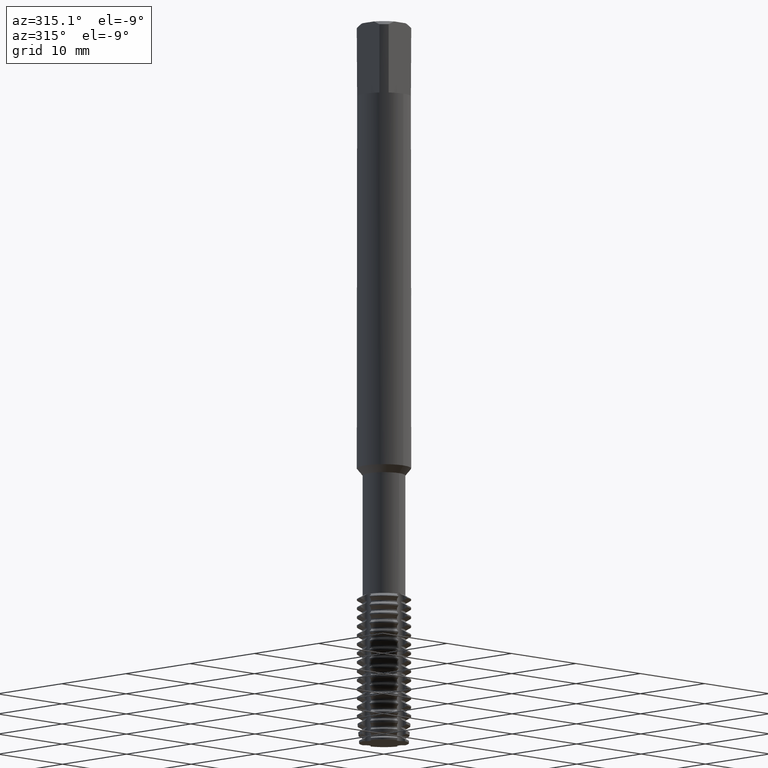
[diagram: clean part render]
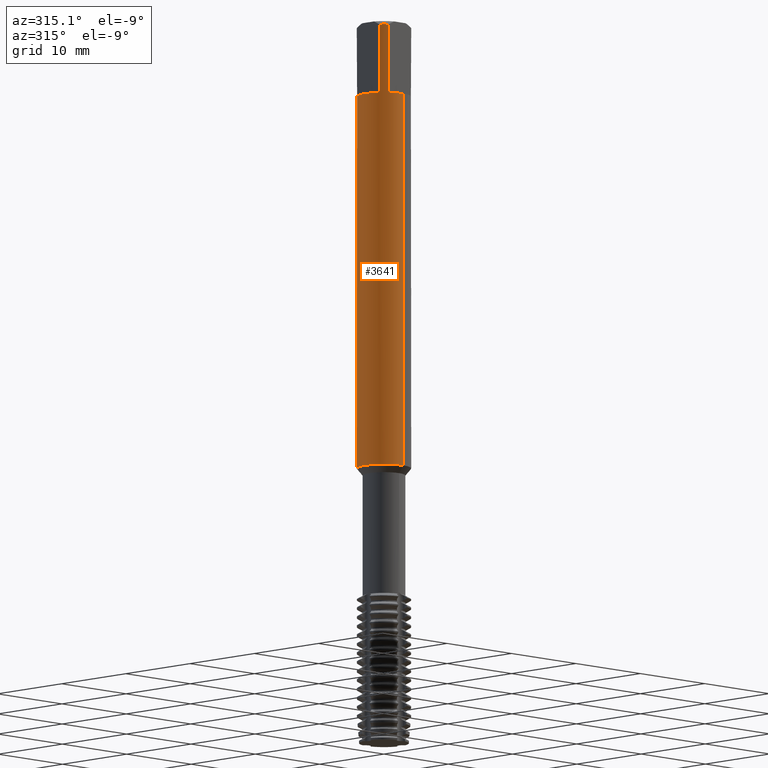
[diagram: same view with one face highlighted and labeled with its STEP entity id]
A machine part, auxiliary view. The second image highlights one B-rep face of the part: STEP entity #3641.
In plain terms, the highlighted cylindrical surface (edge-blend (fillet) strip) has radius 3 mm, axis along (-0, -0, 1).
Its self-contained STEP definition (entity closure, byte-faithful):
#3371=VERTEX_POINT('',#8831);
#3375=VERTEX_POINT('',#8836);
#3441=EDGE_CURVE('',#7007,#3651,#8906,.T.);
#3457=VERTEX_POINT('',#8924);
#3463=EDGE_CURVE('',#3809,#6143,#8931,.T.);
#3641=ADVANCED_FACE('',(#9120),#9121,.T.);
#3651=VERTEX_POINT('',#9132);
#3693=EDGE_CURVE('',#7841,#3809,#9177,.T.);
#3809=VERTEX_POINT('',#9301);
#3993=VERTEX_POINT('',#9498);
#4119=EDGE_CURVE('',#6115,#3375,#9635,.T.);
#4199=EDGE_CURVE('',#6833,#5377,#9725,.T.);
#4393=VERTEX_POINT('',#9937);
#4537=VERTEX_POINT('',#10097);
#4741=EDGE_CURVE('',#7007,#5689,#10323,.T.);
#4965=EDGE_CURVE('',#3371,#7651,#10569,.T.);
#5179=EDGE_CURVE('',#6143,#6803,#10807,.T.);
#5373=VERTEX_POINT('',#11014);
#5377=VERTEX_POINT('',#11019);
#5625=EDGE_CURVE('',#7651,#5373,#11276,.T.);
#5689=VERTEX_POINT('',#11346);
#5763=EDGE_CURVE('',#5373,#7841,#11424,.T.);
#6115=VERTEX_POINT('',#11806);
#6143=VERTEX_POINT('',#11837);
#6171=EDGE_CURVE('',#3651,#4393,#11865,.T.);
#6519=EDGE_CURVE('',#3993,#5689,#12247,.T.);
#6521=EDGE_CURVE('',#4537,#6115,#12249,.T.);
#6777=EDGE_CURVE('',#3457,#4537,#12527,.T.);
#6803=VERTEX_POINT('',#12554);
#6833=VERTEX_POINT('',#12586);
#6971=EDGE_CURVE('',#5377,#7309,#12736,.T.);
#7007=VERTEX_POINT('',#12774);
#7151=EDGE_CURVE('',#4393,#3457,#12936,.T.);
#7169=EDGE_CURVE('',#7309,#3993,#12955,.T.);
#7309=VERTEX_POINT('',#13101);
#7533=VERTEX_POINT('',#13349);
#7649=EDGE_CURVE('',#6803,#7533,#13478,.T.);
#7651=VERTEX_POINT('',#13480);
#7685=EDGE_CURVE('',#3375,#3371,#13516,.T.);
#7841=VERTEX_POINT('',#13680);
#7963=EDGE_CURVE('',#7533,#6833,#13809,.T.);
#8831=CARTESIAN_POINT('',(-2.45,1.73132896931808,-0.399999999999999));
#8836=CARTESIAN_POINT('',(-2.45,1.73132896931808,-8.0));
#8906=LINE('',#15521,#15522);
#8924=CARTESIAN_POINT('',(-1.73132896931808,-2.45,-0.399999999999999));
#8931=B_SPLINE_CURVE_WITH_KNOTS('',3,(#15581,#15582,#15583,#15584,#15585,#15586,#15587,#15588,#15589,#15590,#15591,#15592,#15593,#15594,#15595,#15596,#15597,#15598,#15599,#15600,#15601,#15602,#15603,#15604,#15605,#15606,#15607),.UNSPECIFIED.,.F.,.F.,(4,2,3,2,2,2,2,2,2,2,2,2,4),(-0.325491662881047,-0.162745831440524,0.0,0.162745831440523,0.325491662881047,0.48857928896217,0.651666915043293,0.814181075788761,0.97669523653423,1.13937860219068,1.30206196784712,1.46474533350356,1.62742869916001),.UNSPECIFIED.);
#9120=FACE_OUTER_BOUND('',#15964,.T.);
#9121=CYLINDRICAL_SURFACE('',#15965,3.0);
#9132=CARTESIAN_POINT('',(3.67381906146713E-016,-3.0,-8.0));
#9177=LINE('',#16072,#16073);
#9301=CARTESIAN_POINT('',(-1.12849631556043E-014,3.0,-43.8389612870646));
#9498=CARTESIAN_POINT('',(1.40597456414282E-015,2.99999999999999,-45.043615216062));
#9635=CIRCLE('',#16855,3.0);
#9725=LINE('',#17009,#17010);
#9937=CARTESIAN_POINT('',(-1.73132896931808,-2.45,-8.0));
#10097=CARTESIAN_POINT('',(-2.45,-1.73132896931808,-0.399999999999999));
#10323=CIRCLE('',#18064,3.0);
#10569=CIRCLE('',#18505,3.0);
#10807=B_SPLINE_CURVE_WITH_KNOTS('',3,(#19015,#19016,#19017,#19018,#19019,#19020,#19021,#19022,#19023,#19024,#19025,#19026,#19027,#19028,#19029,#19030,#19031,#19032,#19033,#19034,#19035,#19036,#19037,#19038,#19039,#19040,#19041),.UNSPECIFIED.,.F.,.F.,(4,2,3,2,2,2,2,2,2,2,2,2,4),(-0.325491662881047,-0.162745831440524,0.0,0.162745831440523,0.325491662881047,0.48857928896217,0.651666915043293,0.814181075788761,0.97669523653423,1.13937860219068,1.30206196784712,1.46474533350356,1.62742869916001),.UNSPECIFIED.);
#11014=CARTESIAN_POINT('',(-1.73132896931808,2.45,-8.0));
#11019=CARTESIAN_POINT('',(2.45073976044977E-015,3.0,-44.2527346801947));
#11276=LINE('',#20058,#20059);
#11346=CARTESIAN_POINT('',(0.0,3.0,-49.4));
#11424=CIRCLE('',#20310,3.0);
#11806=CARTESIAN_POINT('',(-2.45,-1.73132896931808,-8.0));
#11837=CARTESIAN_POINT('',(-0.291827366629825,2.98577239388502,-43.6109702489804));
#11865=CIRCLE('',#21109,3.0);
#12247=LINE('',#21833,#21834);
#12249=LINE('',#21837,#21838);
#12527=CIRCLE('',#22340,3.0);
#12554=CARTESIAN_POINT('',(-0.337400394136807,2.98096644966634,-43.4152733192182));
#12586=CARTESIAN_POINT('',(3.38846304659749E-016,3.0,-44.1250480931129));
#12736=ELLIPSE('',#22696,3.34478529612858,3.0);
#12774=CARTESIAN_POINT('',(3.67381906146713E-016,-3.0,-49.4));
#12936=LINE('',#23072,#23073);
#12955=B_SPLINE_CURVE_WITH_KNOTS('',3,(#23131,#23132,#23133,#23134,#23135,#23136,#23137,#23138,#23139,#23140),.UNSPECIFIED.,.F.,.F.,(4,2,2,2,4),(3.33952438176389,3.71068639626914,4.08193290438485,4.45317941250055,4.82387408804259),.UNSPECIFIED.);
#13101=CARTESIAN_POINT('',(-0.802231651465797,2.89074806536067,-44.6482482345277));
#13349=CARTESIAN_POINT('',(-0.621044042345276,2.93501350890715,-43.4152733192182));
#13478=CIRCLE('',#24155,3.0);
#13480=CARTESIAN_POINT('',(-1.73132896931808,2.45,-0.399999999999999));
#13516=LINE('',#24232,#24233);
#13680=CARTESIAN_POINT('',(-3.67381906146713E-016,3.0,-8.0));
#13809=B_SPLINE_CURVE_WITH_KNOTS('',3,(#24823,#24824,#24825,#24826,#24827,#24828,#24829,#24830,#24831,#24832,#24833,#24834,#24835,#24836),.UNSPECIFIED.,.F.,.F.,(4,2,2,2,2,2,4),(1.87999836018882,2.14840403024698,2.41680970030514,2.6852153703633,2.95307215785743,3.22092894535156,3.49027513061082),.UNSPECIFIED.);
#15521=CARTESIAN_POINT('',(3.67381906146713E-016,-3.0,-24.9));
#15522=VECTOR('',#25998,1.0);
#15581=CARTESIAN_POINT('',(0.399073662054701,2.9733382270193,-43.1131578074487));
#15582=CARTESIAN_POINT('',(0.437241118172757,2.96821549111729,-43.1513666363942));
#15583=CARTESIAN_POINT('',(0.470378499662079,2.96297848846858,-43.1997661621587));
#15584=CARTESIAN_POINT('',(0.514381160077738,2.95565719997762,-43.3059468503984));
#15585=CARTESIAN_POINT('',(0.525240588713139,2.95366252709552,-43.3637365970719));
#15586=CARTESIAN_POINT('',(0.525240588713139,2.95366252709552,-43.4179852075521));
#15587=CARTESIAN_POINT('',(0.525240588713139,2.95366252709552,-43.4722338180323));
#15588=CARTESIAN_POINT('',(0.514381160077738,2.95565719997762,-43.5300235647058));
#15589=CARTESIAN_POINT('',(0.470378499662079,2.96297848846858,-43.6362042529454));
#15590=CARTESIAN_POINT('',(0.437241118172758,2.96821549111729,-43.68460377871));
#15591=CARTESIAN_POINT('',(0.360826047619651,2.97847172156046,-43.7611016818081));
#15592=CARTESIAN_POINT('',(0.312384718269332,2.98416839722865,-43.7943131706837));
#15593=CARTESIAN_POINT('',(0.206102293488516,2.99338722515065,-43.8384202069633));
#15594=CARTESIAN_POINT('',(0.148251731896476,2.99682777449178,-43.8493099616648));
#15595=CARTESIAN_POINT('',(0.0397709987252813,3.00022545933147,-43.8493099616648));
#15596=CARTESIAN_POINT('',(-0.0179912012444204,3.00041652694693,-43.8384886213906));
#15597=CARTESIAN_POINT('',(-0.124225517538501,2.99789776999505,-43.7944963705132));
#15598=CARTESIAN_POINT('',(-0.172700489972417,2.99527068292401,-43.7613276588387));
#15599=CARTESIAN_POINT('',(-0.249281669772502,2.9898718432363,-43.6847995158294));
#15600=CARTESIAN_POINT('',(-0.282493736677505,2.98675204362553,-43.6363123678398));
#15601=CARTESIAN_POINT('',(-0.326558647658044,2.98225584656319,-43.5300214521099));
#15602=CARTESIAN_POINT('',(-0.337408919512348,2.9809654847102,-43.4722129961042));
#15603=CARTESIAN_POINT('',(-0.337408919512347,2.9809654847102,-43.3637574189999));
#15604=CARTESIAN_POINT('',(-0.326558647658045,2.98225584656319,-43.3059489629942));
#15605=CARTESIAN_POINT('',(-0.282493736677516,2.98675204362553,-43.1996580472644));
#15606=CARTESIAN_POINT('',(-0.2492816697725,2.9898718432363,-43.1511708992748));
#15607=CARTESIAN_POINT('',(-0.210971156732432,2.9925726676268,-43.112886918428));
#15964=EDGE_LOOP('',(#26165,#26166,#26167,#26168,#26169,#26170,#26171,#26172,#26173,#26174,#26175,#26176,#26177,#26178,#26179,#26180,#26181,#26182,#26183,#26184));
#15965=AXIS2_PLACEMENT_3D('',#26185,#26186,#26187);
#16072=CARTESIAN_POINT('',(-3.67381906146713E-016,3.0,-24.9));
#16073=VECTOR('',#26237,1.0);
#16855=AXIS2_PLACEMENT_3D('',#26666,#26667,#26668);
#17009=CARTESIAN_POINT('',(-3.67381906146713E-016,3.0,-24.9));
#17010=VECTOR('',#26783,1.0);
#18064=AXIS2_PLACEMENT_3D('',#27443,#27444,#27445);
#18505=AXIS2_PLACEMENT_3D('',#27823,#27824,#27825);
#19015=CARTESIAN_POINT('',(0.399073662054701,2.9733382270193,-43.1131578074487));
#19016=CARTESIAN_POINT('',(0.437241118172757,2.96821549111729,-43.1513666363942));
#19017=CARTESIAN_POINT('',(0.470378499662079,2.96297848846858,-43.1997661621587));
#19018=CARTESIAN_POINT('',(0.514381160077738,2.95565719997762,-43.3059468503984));
#19019=CARTESIAN_POINT('',(0.525240588713139,2.95366252709552,-43.3637365970719));
#19020=CARTESIAN_POINT('',(0.525240588713139,2.95366252709552,-43.4179852075521));
#19021=CARTESIAN_POINT('',(0.525240588713139,2.95366252709552,-43.4722338180323));
#19022=CARTESIAN_POINT('',(0.514381160077738,2.95565719997762,-43.5300235647058));
#19023=CARTESIAN_POINT('',(0.470378499662079,2.96297848846858,-43.6362042529454));
#19024=CARTESIAN_POINT('',(0.437241118172758,2.96821549111729,-43.68460377871));
#19025=CARTESIAN_POINT('',(0.360826047619651,2.97847172156046,-43.7611016818081));
#19026=CARTESIAN_POINT('',(0.312384718269332,2.98416839722865,-43.7943131706837));
#19027=CARTESIAN_POINT('',(0.206102293488516,2.99338722515065,-43.8384202069633));
#19028=CARTESIAN_POINT('',(0.148251731896476,2.99682777449178,-43.8493099616648));
#19029=CARTESIAN_POINT('',(0.0397709987252813,3.00022545933147,-43.8493099616648));
#19030=CARTESIAN_POINT('',(-0.0179912012444204,3.00041652694693,-43.8384886213906));
#19031=CARTESIAN_POINT('',(-0.124225517538501,2.99789776999505,-43.7944963705132));
#19032=CARTESIAN_POINT('',(-0.172700489972417,2.99527068292401,-43.7613276588387));
#19033=CARTESIAN_POINT('',(-0.249281669772502,2.9898718432363,-43.6847995158294));
#19034=CARTESIAN_POINT('',(-0.282493736677505,2.98675204362553,-43.6363123678398));
#19035=CARTESIAN_POINT('',(-0.326558647658044,2.98225584656319,-43.5300214521099));
#19036=CARTESIAN_POINT('',(-0.337408919512348,2.9809654847102,-43.4722129961042));
#19037=CARTESIAN_POINT('',(-0.337408919512347,2.9809654847102,-43.3637574189999));
#19038=CARTESIAN_POINT('',(-0.326558647658045,2.98225584656319,-43.3059489629942));
#19039=CARTESIAN_POINT('',(-0.282493736677516,2.98675204362553,-43.1996580472644));
#19040=CARTESIAN_POINT('',(-0.2492816697725,2.9898718432363,-43.1511708992748));
#19041=CARTESIAN_POINT('',(-0.210971156732432,2.9925726676268,-43.112886918428));
#20058=CARTESIAN_POINT('',(-1.73132896931808,2.45,-4.2));
#20059=VECTOR('',#28427,1.0);
#20310=AXIS2_PLACEMENT_3D('',#28679,#28680,#28681);
#21109=AXIS2_PLACEMENT_3D('',#29103,#29104,#29105);
#21833=CARTESIAN_POINT('',(-3.67381906146713E-016,3.0,-24.9));
#21834=VECTOR('',#29530,1.0);
#21837=CARTESIAN_POINT('',(-2.45,-1.73132896931808,-4.2));
#21838=VECTOR('',#29531,1.0);
#22340=AXIS2_PLACEMENT_3D('',#29793,#29794,#29795);
#22696=AXIS2_PLACEMENT_3D('',#29995,#29996,#29997);
#23072=CARTESIAN_POINT('',(-1.73132896931808,-2.45,-4.2));
#23073=VECTOR('',#30218,1.0);
#23131=CARTESIAN_POINT('',(-0.919321134391313,2.85566956279284,-44.4417514643836));
#23132=CARTESIAN_POINT('',(-0.869340333826626,2.87175979045446,-44.5619526818478));
#23133=CARTESIAN_POINT('',(-0.7943367658771,2.89428729416518,-44.671180348735));
#23134=CARTESIAN_POINT('',(-0.62190649826245,2.93617195165647,-44.8436756687858));
#23135=CARTESIAN_POINT('',(-0.512637169305669,2.95836427575571,-44.9187653794613));
#23136=CARTESIAN_POINT('',(-0.272101743389458,2.99009643596645,-45.0188340938058));
#23137=CARTESIAN_POINT('',(-0.140764146727553,2.99924977776393,-45.0437634001052));
#23138=CARTESIAN_POINT('',(0.106545602280532,3.0006526485303,-45.0437634001052));
#23139=CARTESIAN_POINT('',(0.237797441372151,2.9930118737714,-45.0189004779081));
#23140=CARTESIAN_POINT('',(0.358042092904167,2.97855768111158,-44.9689214764374));
#24155=AXIS2_PLACEMENT_3D('',#30885,#30886,#30887);
#24232=CARTESIAN_POINT('',(-2.45,1.73132896931808,-4.2));
#24233=VECTOR('',#30921,1.0);
#24823=CARTESIAN_POINT('',(-0.566815594805732,2.94596674819744,-43.1486150957041));
#24824=CARTESIAN_POINT('',(-0.603122291768812,2.93898119928694,-43.2360702631868));
#24825=CARTESIAN_POINT('',(-0.621065410741118,2.93500898730838,-43.3313125597536));
#24826=CARTESIAN_POINT('',(-0.621065410741118,2.93500898730838,-43.5102496731257));
#24827=CARTESIAN_POINT('',(-0.603122291768812,2.93898119928694,-43.6054919696925));
#24828=CARTESIAN_POINT('',(-0.530508897842664,2.95295229710796,-43.780402304658));
#24829=CARTESIAN_POINT('',(-0.475852290631327,2.96270316106731,-43.8600957389974));
#24830=CARTESIAN_POINT('',(-0.349984167638816,2.98019126514534,-43.985811405771));
#24831=CARTESIAN_POINT('',(-0.270336314519273,2.98907692835774,-44.0403432148754));
#24832=CARTESIAN_POINT('',(-0.0955895793377453,2.99975419634472,-44.1127548978209));
#24833=CARTESIAN_POINT('',(-0.00047184449299921,3.00132832175784,-44.130621178052));
#24834=CARTESIAN_POINT('',(0.178517394741791,2.99602943216305,-44.130621178052));
#24835=CARTESIAN_POINT('',(0.273865411703846,2.98877153009163,-44.1125766213428));
#24836=CARTESIAN_POINT('',(0.361301135447281,2.97816411393404,-44.0762216005985));
#25998=DIRECTION('',(-0.0,-0.0,1.0));
#26165=ORIENTED_EDGE('',*,*,#3693,.T.);
#26166=ORIENTED_EDGE('',*,*,#3463,.T.);
#26167=ORIENTED_EDGE('',*,*,#5179,.T.);
#26168=ORIENTED_EDGE('',*,*,#7649,.T.);
#26169=ORIENTED_EDGE('',*,*,#7963,.T.);
#26170=ORIENTED_EDGE('',*,*,#4199,.T.);
#26171=ORIENTED_EDGE('',*,*,#6971,.T.);
#26172=ORIENTED_EDGE('',*,*,#7169,.T.);
#26173=ORIENTED_EDGE('',*,*,#6519,.T.);
#26174=ORIENTED_EDGE('',*,*,#4741,.F.);
#26175=ORIENTED_EDGE('',*,*,#3441,.T.);
#26176=ORIENTED_EDGE('',*,*,#6171,.T.);
#26177=ORIENTED_EDGE('',*,*,#7151,.T.);
#26178=ORIENTED_EDGE('',*,*,#6777,.T.);
#26179=ORIENTED_EDGE('',*,*,#6521,.T.);
#26180=ORIENTED_EDGE('',*,*,#4119,.T.);
#26181=ORIENTED_EDGE('',*,*,#7685,.T.);
#26182=ORIENTED_EDGE('',*,*,#4965,.T.);
#26183=ORIENTED_EDGE('',*,*,#5625,.T.);
#26184=ORIENTED_EDGE('',*,*,#5763,.T.);
#26185=CARTESIAN_POINT('',(0.0,0.0,-24.9));
#26186=DIRECTION('',(-0.0,-0.0,1.0));
#26187=DIRECTION('',(0.0,1.0,0.0));
#26237=DIRECTION('',(0.0,0.0,-1.0));
#26666=CARTESIAN_POINT('',(0.0,0.0,-8.0));
#26667=DIRECTION('',(0.0,0.0,-1.0));
#26668=DIRECTION('',(0.0,1.0,0.0));
#26783=DIRECTION('',(0.0,0.0,-1.0));
#27443=CARTESIAN_POINT('',(0.0,0.0,-49.4));
#27444=DIRECTION('',(0.0,0.0,-1.0));
#27445=DIRECTION('',(0.0,1.0,0.0));
#27823=CARTESIAN_POINT('',(0.0,0.0,-0.399999999999999));
#27824=DIRECTION('',(0.0,0.0,-1.0));
#27825=DIRECTION('',(0.0,1.0,0.0));
#28427=DIRECTION('',(0.0,0.0,-1.0));
#28679=CARTESIAN_POINT('',(0.0,0.0,-8.0));
#28680=DIRECTION('',(0.0,0.0,-1.0));
#28681=DIRECTION('',(0.0,1.0,0.0));
#29103=CARTESIAN_POINT('',(0.0,0.0,-8.0));
#29104=DIRECTION('',(0.0,0.0,-1.0));
#29105=DIRECTION('',(0.0,1.0,0.0));
#29530=DIRECTION('',(0.0,0.0,-1.0));
#29531=DIRECTION('',(0.0,0.0,-1.0));
#29793=CARTESIAN_POINT('',(0.0,0.0,-0.399999999999999));
#29794=DIRECTION('',(0.0,0.0,-1.0));
#29795=DIRECTION('',(0.0,1.0,0.0));
#29995=CARTESIAN_POINT('',(0.0,0.0,-44.2527346801947));
#29996=DIRECTION('',(-0.442195774284071,0.0,0.896918556617774));
#29997=DIRECTION('',(0.896918556617774,-0.0,0.442195774284071));
#30218=DIRECTION('',(-0.0,-0.0,1.0));
#30885=CARTESIAN_POINT('',(0.0,0.0,-43.4152733192182));
#30886=DIRECTION('',(0.0,-0.0,1.0));
#30887=DIRECTION('',(0.0,1.0,0.0));
#30921=DIRECTION('',(-0.0,-0.0,1.0));